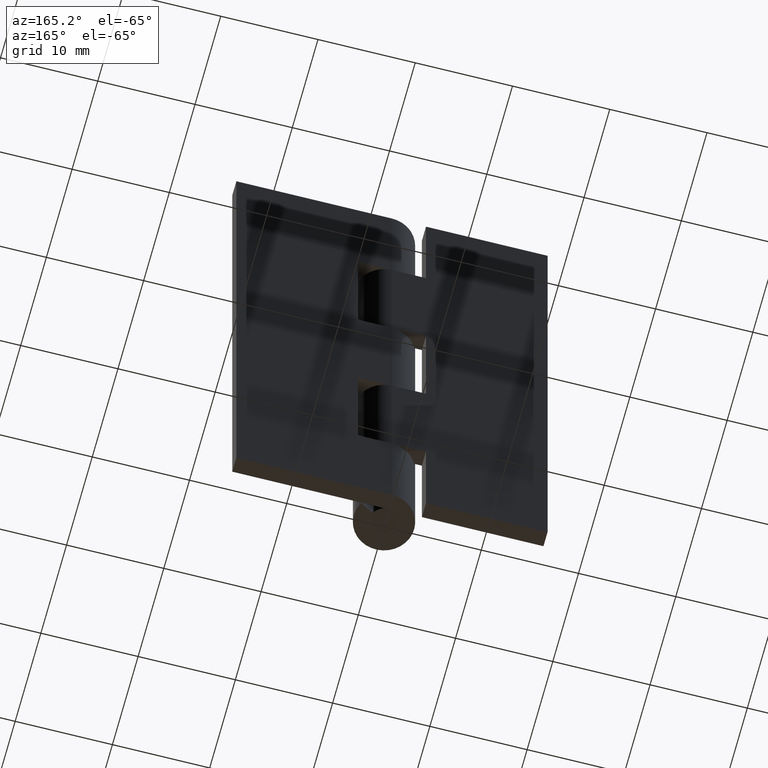
[diagram: clean part render]
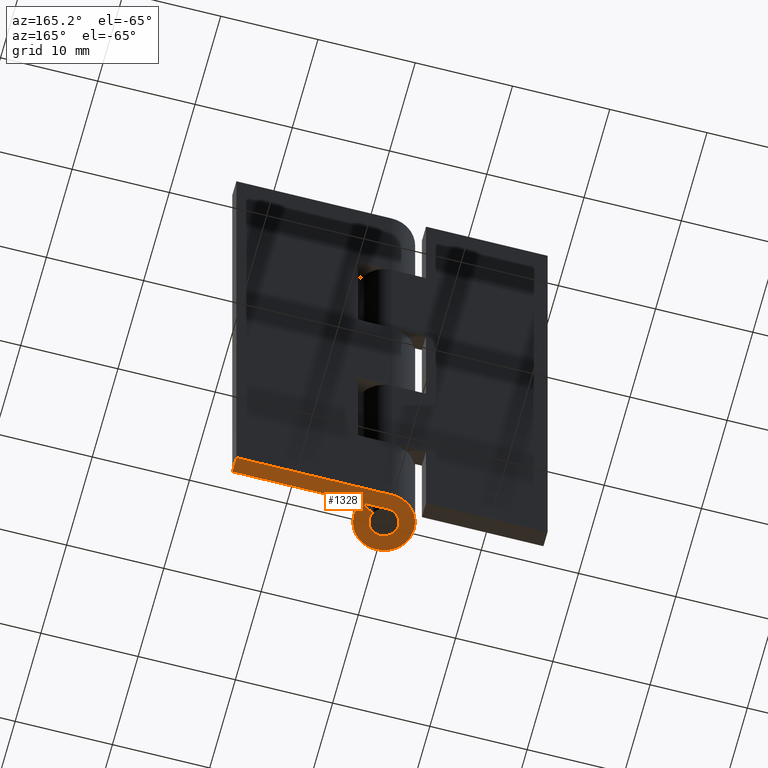
[diagram: same view with one face highlighted and labeled with its STEP entity id]
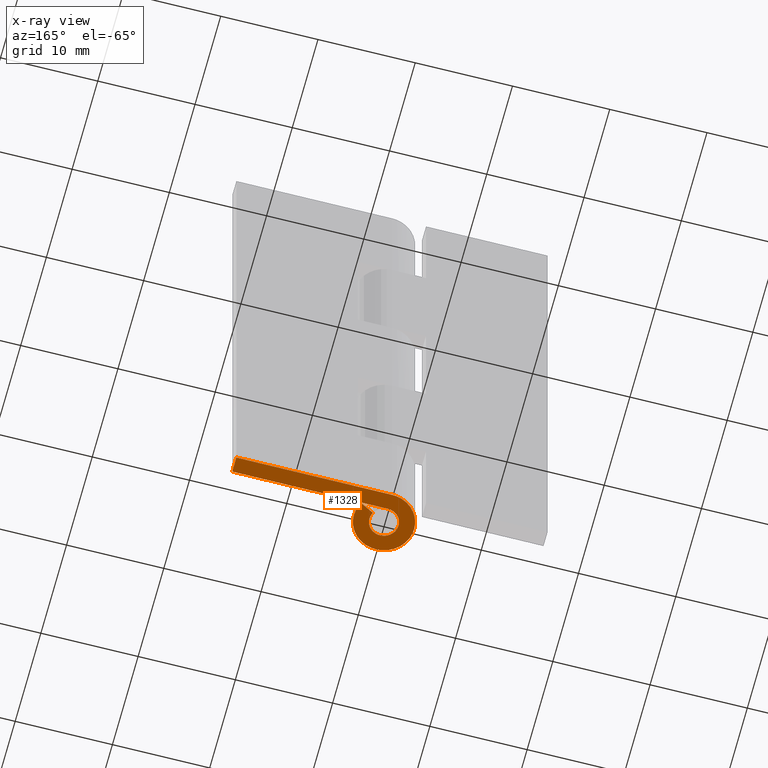
[diagram: x-ray of the same camera — body ghosted, the highlighted face saturated]
A machine part, auxiliary view. The second image highlights one B-rep face of the part: STEP entity #1328.
The next image is the same camera in x-ray: the body ghosted, the highlighted face saturated — about 0% of this face is hidden behind the body in this view.
In plain terms, the highlighted face is a freeform B-spline surface patch.
Its self-contained STEP definition (entity closure, byte-faithful):
#1251=CARTESIAN_POINT('',(-4.053815920774167,-3.408860494302173,0.0));
#1252=CARTESIAN_POINT('',(16.954034578893129,-3.408860494302173,0.0));
#1253=CARTESIAN_POINT('',(-4.053815920774167,3.409648597034444,0.0));
#1254=CARTESIAN_POINT('',(16.954034578893129,3.409648597034444,0.0));
#1255=B_SPLINE_SURFACE_WITH_KNOTS('',1,1,((#1251,#1253),(#1252,#1254)),.UNSPECIFIED.,.F.,.F.,.U.,(2,2),(2,2),(0.0,21.007850499667299),(0.0,6.818509091336617),.UNSPECIFIED.);
#1256=CARTESIAN_POINT('',(1.325797621821316,0.701612903225807,0.0));
#1257=VERTEX_POINT('',#1256);
#1258=CARTESIAN_POINT('',(0.0,1.500000000000000,0.0));
#1259=VERTEX_POINT('',#1258);
#1260=CARTESIAN_POINT('',(1.325797621821315,0.701612903225807,0.0));
#1261=CARTESIAN_POINT('',(1.859045520162960,-0.306035035134631,0.0));
#1262=CARTESIAN_POINT('',(1.030933009042893,-1.089576583295441,0.0));
#1263=CARTESIAN_POINT('',(0.202820497922826,-1.873118131456252,0.0));
#1264=CARTESIAN_POINT('',(-0.773815431857395,-1.284994037892532,0.0));
#1265=CARTESIAN_POINT('',(-1.750451361637613,-0.696869944328814,0.0));
#1266=CARTESIAN_POINT('',(-1.445249296287461,0.401565027835592,0.0));
#1267=CARTESIAN_POINT('',(-1.140047230937308,1.500000000000000,0.0));
#1268=CARTESIAN_POINT('',(0.0,1.500000000000000,0.0));
#1276=(BOUNDED_CURVE()B_SPLINE_CURVE(2,(#1260,#1261,#1262,#1263,#1264,#1265,#1266,#1267,#1268),.UNSPECIFIED.,.F.,.U.)B_SPLINE_CURVE_WITH_KNOTS((3,2,2,2,3),(0.0,0.250000000000000,0.500000000000000,0.750000000000000,1.0),.UNSPECIFIED.)CURVE()GEOMETRIC_REPRESENTATION_ITEM()RATIONAL_B_SPLINE_CURVE((1.0,0.796150117301085,1.0,0.796150117301085,1.0,0.796150117301085,1.0,0.796150117301085,1.0))REPRESENTATION_ITEM(''));
#1277=EDGE_CURVE('',#1257,#1259,#1276,.T.);
#1278=ORIENTED_EDGE('',*,*,#1277,.F.);
#1279=CARTESIAN_POINT('',(2.739981751764055,1.450000000000000,0.0));
#1280=VERTEX_POINT('',#1279);
#1281=CARTESIAN_POINT('',(2.739981751764055,1.450000000000000,0.0));
#1282=CARTESIAN_POINT('',(1.325797621821316,0.701612903225807,0.0));
#1283=QUASI_UNIFORM_CURVE('',1,(#1281,#1282),.UNSPECIFIED.,.F.,.U.);
#1284=EDGE_CURVE('',#1280,#1257,#1283,.T.);
#1285=ORIENTED_EDGE('',*,*,#1284,.F.);
#1286=CARTESIAN_POINT('',(0.003521362805220,3.099998000000000,0.0));
#1287=VERTEX_POINT('',#1286);
#1288=CARTESIAN_POINT('',(2.739981751764052,1.450000000000000,0.0));
#1289=CARTESIAN_POINT('',(3.842352259281344,-0.633086258124317,0.0));
#1290=CARTESIAN_POINT('',(2.129955333572984,-2.252396562993293,0.0));
#1291=CARTESIAN_POINT('',(0.417558407864625,-3.871706867862267,0.0));
#1292=CARTESIAN_POINT('',(-1.600726611546711,-2.654745621540072,0.0));
#1293=CARTESIAN_POINT('',(-3.619011630958046,-1.437784375217877,0.0));
#1294=CARTESIAN_POINT('',(-2.986140433580759,0.832445380150624,0.0));
#1295=CARTESIAN_POINT('',(-2.353269236203469,3.102675135519129,0.0));
#1296=CARTESIAN_POINT('',(0.003521362805217,3.099997999999999,0.0));
#1304=(BOUNDED_CURVE()B_SPLINE_CURVE(2,(#1288,#1289,#1290,#1291,#1292,#1293,#1294,#1295,#1296),.UNSPECIFIED.,.F.,.U.)B_SPLINE_CURVE_WITH_KNOTS((3,2,2,2,3),(0.0,0.250000000000000,0.500000000000000,0.750000000000000,1.0),.UNSPECIFIED.)CURVE()GEOMETRIC_REPRESENTATION_ITEM()RATIONAL_B_SPLINE_CURVE((1.0,0.796064190964140,1.0,0.796064190964140,1.0,0.796064190964140,1.0,0.796064190964140,1.0))REPRESENTATION_ITEM(''));
#1305=EDGE_CURVE('',#1280,#1287,#1304,.T.);
#1306=ORIENTED_EDGE('',*,*,#1305,.T.);
#1307=CARTESIAN_POINT('',(16.0,3.099998000000000,0.0));
#1308=VERTEX_POINT('',#1307);
#1309=CARTESIAN_POINT('',(16.0,3.099998000000000,0.0));
#1310=CARTESIAN_POINT('',(0.003521362805220,3.099998000000000,0.0));
#1311=QUASI_UNIFORM_CURVE('',1,(#1309,#1310),.UNSPECIFIED.,.F.,.U.);
#1312=EDGE_CURVE('',#1308,#1287,#1311,.T.);
#1313=ORIENTED_EDGE('',*,*,#1312,.F.);
#1314=CARTESIAN_POINT('',(16.0,1.500000000000000,0.0));
#1315=VERTEX_POINT('',#1314);
#1316=CARTESIAN_POINT('',(16.0,1.500000000000000,0.0));
#1317=CARTESIAN_POINT('',(16.0,3.099998000000000,0.0));
#1318=QUASI_UNIFORM_CURVE('',1,(#1316,#1317),.UNSPECIFIED.,.F.,.U.);
#1319=EDGE_CURVE('',#1315,#1308,#1318,.T.);
#1320=ORIENTED_EDGE('',*,*,#1319,.F.);
#1321=CARTESIAN_POINT('',(0.0,1.500000000000000,0.0));
#1322=CARTESIAN_POINT('',(16.0,1.500000000000000,0.0));
#1323=QUASI_UNIFORM_CURVE('',1,(#1321,#1322),.UNSPECIFIED.,.F.,.U.);
#1324=EDGE_CURVE('',#1259,#1315,#1323,.T.);
#1325=ORIENTED_EDGE('',*,*,#1324,.F.);
#1326=EDGE_LOOP('',(#1278,#1285,#1306,#1313,#1320,#1325));
#1327=FACE_OUTER_BOUND('',#1326,.T.);
#1328=ADVANCED_FACE('',(#1327),#1255,.F.);